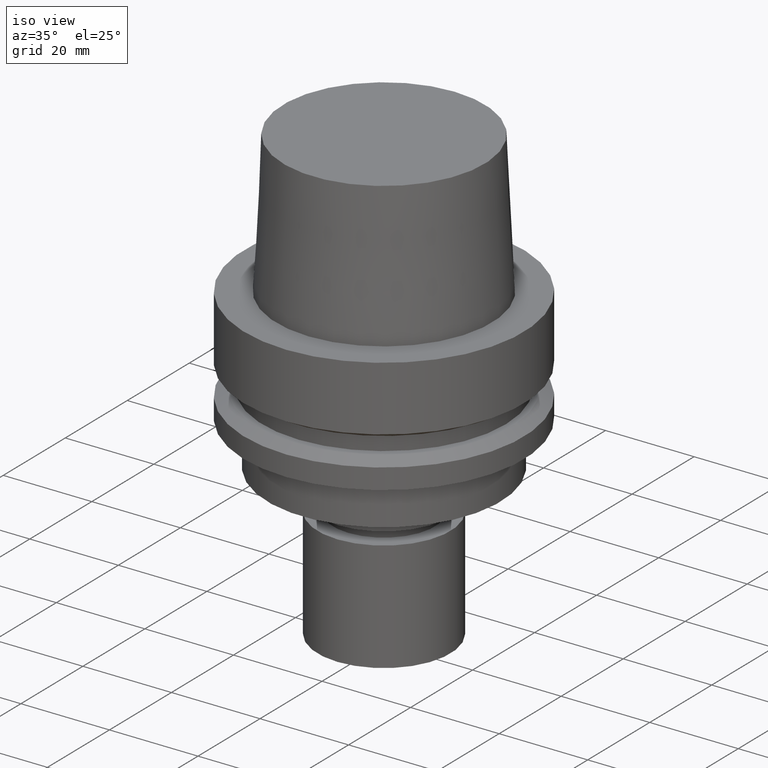
[diagram: clean part render]
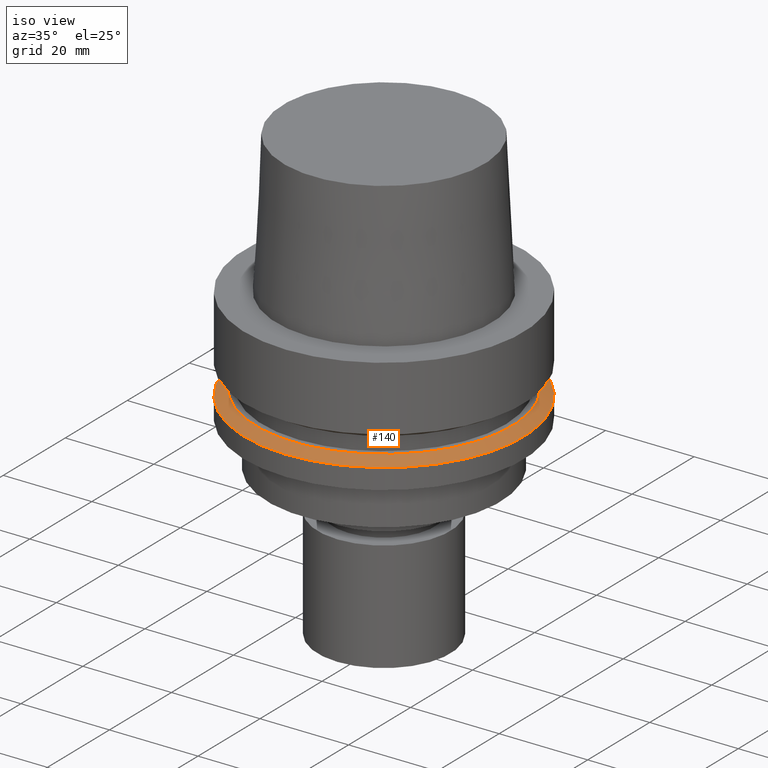
[diagram: same view with one face highlighted and labeled with its STEP entity id]
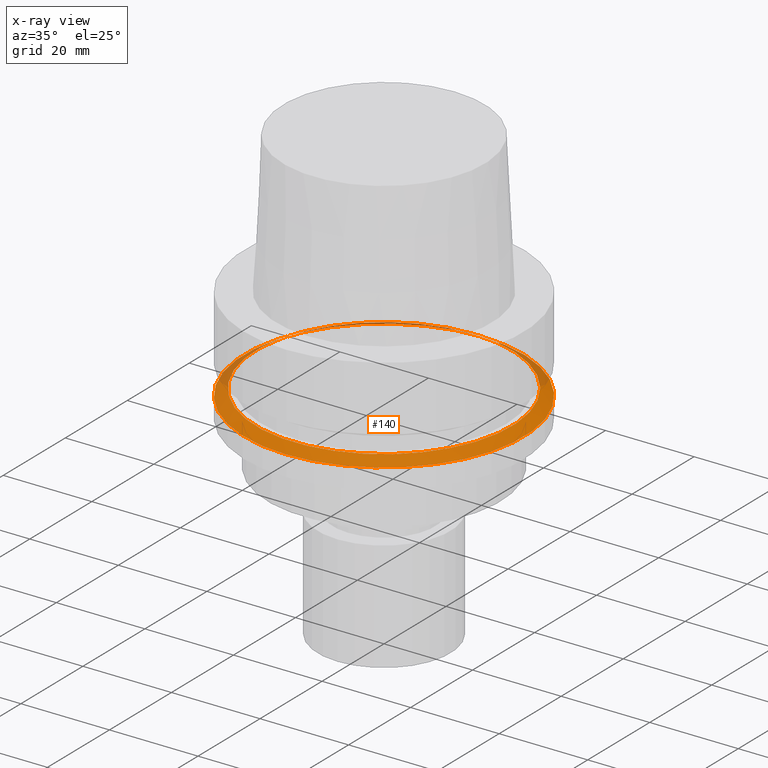
[diagram: x-ray of the same camera — body ghosted, the highlighted face saturated]
A machine part, iso view. The second image highlights one B-rep face of the part: STEP entity #140.
The next image is the same camera in x-ray: the body ghosted, the highlighted face saturated — about 13% of this face is hidden behind the body in this view.
In plain terms, the highlighted conical surface has half-angle 60 deg.
Its self-contained STEP definition (entity closure, byte-faithful):
#112=EDGE_CURVE('Unnamed[1]',#269,#269,#270,.T.);
#140=ADVANCED_FACE('Unnamed[1]',(#312,#313),#314,.T.);
#179=EDGE_CURVE('Unnamed[1]',#372,#372,#373,.T.);
#269=VERTEX_POINT('',#480);
#270=CIRCLE('',#481,31.5);
#312=FACE_BOUND('',#534,.T.);
#313=FACE_BOUND('',#535,.T.);
#314=CONICAL_SURFACE('',#536,30.1987976320959,1.04719755119657);
#372=VERTEX_POINT('',#609);
#373=CIRCLE('',#610,28.8975952641919);
#480=CARTESIAN_POINT('',(1.30899429078397E-015,31.5,-21.3774990747592));
#481=AXIS2_PLACEMENT_3D('',#706,#707,#708);
#534=EDGE_LOOP('',(#754));
#535=EDGE_LOOP('',(#755));
#536=AXIS2_PLACEMENT_3D('',#756,#757,#758);
#609=CARTESIAN_POINT('',(1.21699275665268E-015,28.8975952641919,-19.875));
#610=AXIS2_PLACEMENT_3D('',#819,#820,#821);
#706=CARTESIAN_POINT('',(1.30899429078397E-015,2.61798858156794E-015,-21.3774990747592));
#707=DIRECTION('',(-6.12323399573677E-017,-1.22464679914719E-016,1.0));
#708=DIRECTION('',(-1.23259516440783E-032,1.0,1.22464679914719E-016));
#754=ORIENTED_EDGE('',*,*,#179,.F.);
#755=ORIENTED_EDGE('',*,*,#112,.T.);
#756=CARTESIAN_POINT('',(1.26299352371833E-015,2.52598704743665E-015,-20.6262495373796));
#757=DIRECTION('',(6.12323399573677E-017,1.22464679914731E-016,-1.0));
#758=DIRECTION('',(-1.23259516440784E-032,1.0,1.22464679914731E-016));
#819=CARTESIAN_POINT('',(1.21699275665268E-015,2.43398551330536E-015,-19.875));
#820=DIRECTION('',(-6.12323399573677E-017,-1.22464679914745E-016,1.0));
#821=DIRECTION('',(-1.23259516440785E-032,1.0,1.22464679914745E-016));